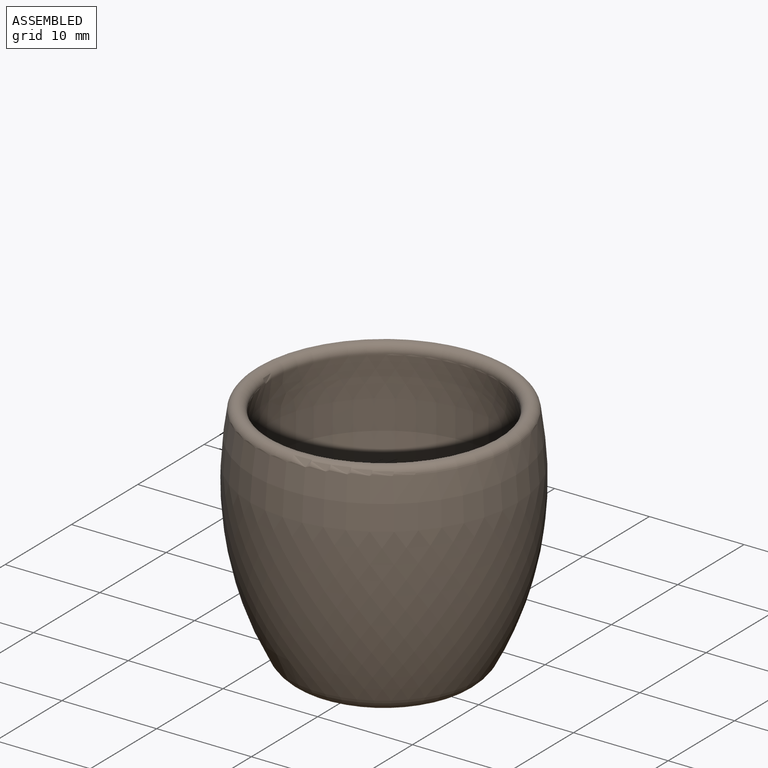
[diagram: assembled view]
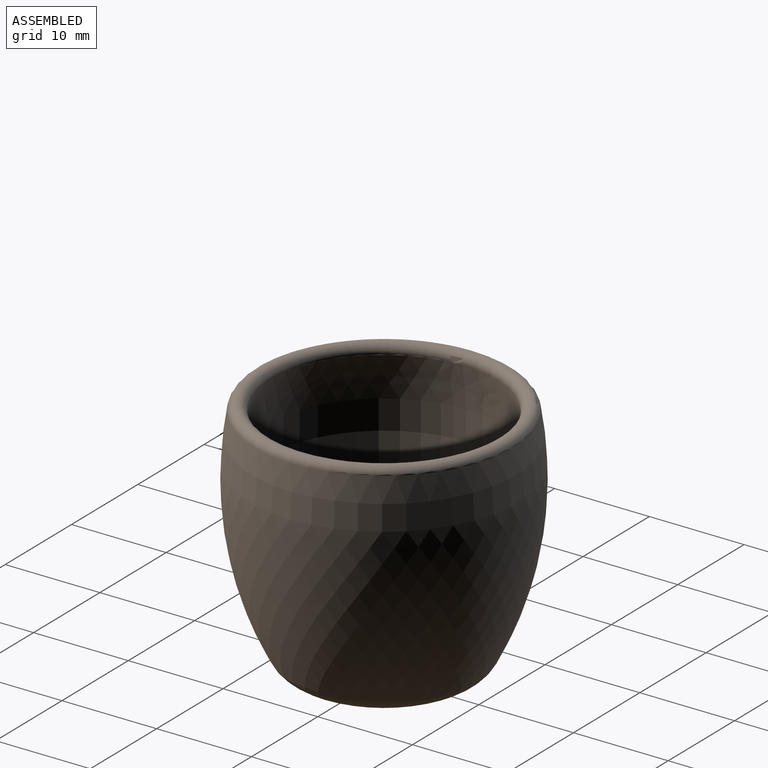
[diagram: assembled view, second angle]
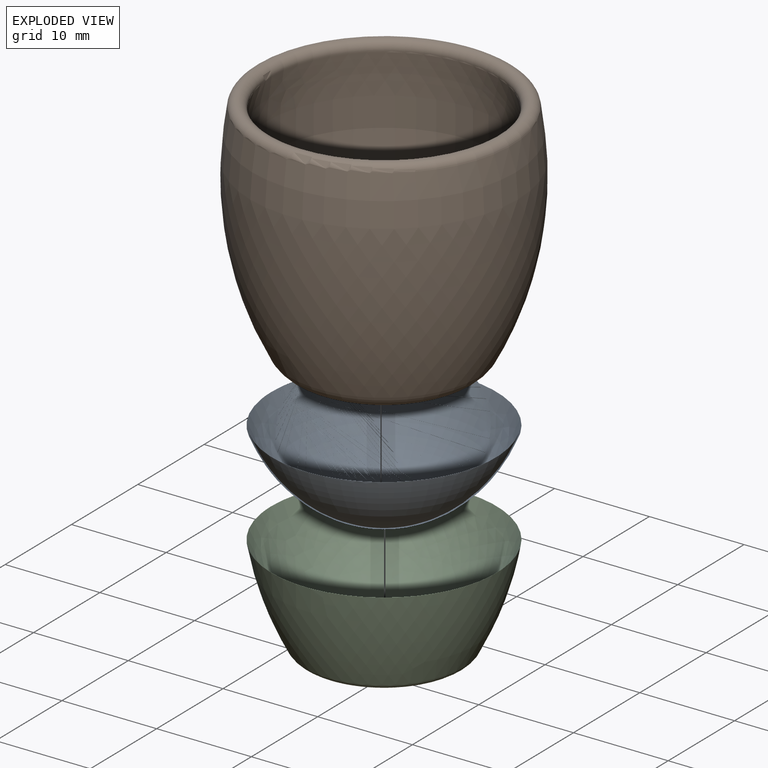
[diagram: exploded view]
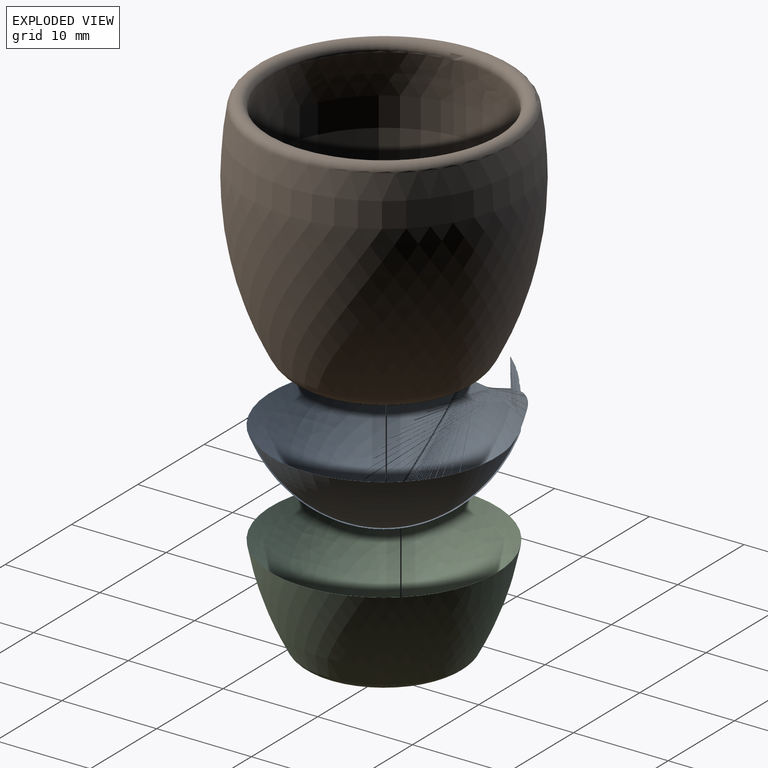
[diagram: exploded view, second angle]
ASSEMBLY  parts=3 mates=2
PART A: 3 faces, bbox 25.8x25.8x21.6 mm
  f0: revolved ~25.83x25.83mm, area 809.3mm2, adj f1
  f1: cone r=11.9mm half-angle=61.7deg, axis (0,0,-1), area 9.4mm2, adj f0,f2
  f2: revolved ~23.79x23.79mm, area 672.3mm2, adj f1
PART B: 14 faces, bbox 29.4x29.4x25.5 mm
  f0: revolved ~24.82x24.82mm, area 1622.7mm2, adj f1,f6
  f1: torus R=12.72mm, axis (0,0,-1), area 220.3mm2, adj f0,f2
  f2: revolved ~28.32x28.32mm, area 1960.2mm2, adj f1,f3
  f3: torus R=7.25mm, axis (0,0,-1), area 186.2mm2, adj f2,f4
  f4: plane 14.51x14.51mm, normal (0,0,-1), area 165.3mm2, adj f3
  f5: plane 14.51x14.51mm, normal (0,0,1), area 165.3mm2, adj f6
  f6: torus R=7.25mm, axis (0,0,-1), area 74mm2, adj f0,f5
  f7: plane 14.51x14.51mm, normal (0,0,1), area 165.3mm2, adj f8
  f8: torus R=7.25mm, axis (0,0,-1), area 177.6mm2, adj f7,f9
  f9: revolved ~28.07x28.07mm, area 1935.4mm2, adj f8,f10
  f10: torus R=12.72mm, axis (0,0,-1), area 189.2mm2, adj f9,f11
  f11: revolved ~25.07x25.07mm, area 1646mm2, adj f10,f12
  f12: torus R=7.25mm, axis (0,0,-1), area 81.3mm2, adj f11,f13
  f13: plane 14.51x14.51mm, normal (0,0,-1), area 165.3mm2, adj f12
PART C: 4 faces, bbox 23.8x23.8x10.6 mm
  f0: plane 14.51x14.51mm, normal (0,0,-1), area 165.3mm2, adj f3
  f1: revolved ~23.79x23.79mm, area 672.3mm2, adj f2
  f2: revolved ~23.79x23.79mm, area 690.1mm2, adj f1,f3
  f3: torus R=7.25mm, axis (0,0,-1), area 74mm2, adj f0,f2
PLACE A t=(-6.99,0,7.65)mm
PLACE B at identity fixed
PLACE C t=(-6.99,0,7.65)mm
MATE fastened C.f3 <-> B.f1  axis (0,0,-1) through (0,0,1.63)mm
MATE fastened A.f1 <-> C.f3  axis (0,0,-1) through (0,0,3.5)mm
